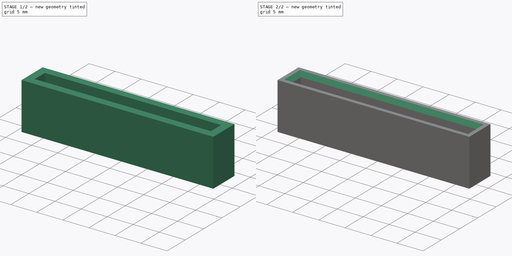
[diagram: build sequence overview — one tinted view per stage of 2, left to right]
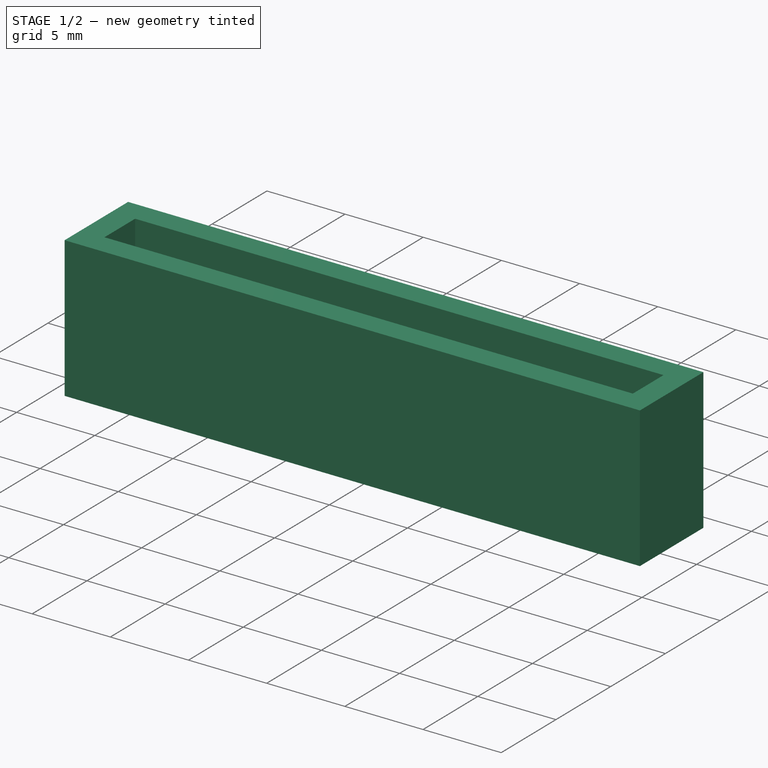
[diagram: stage 1 of 2 — iso view after this stage's code; geometry added in this stage tinted green]
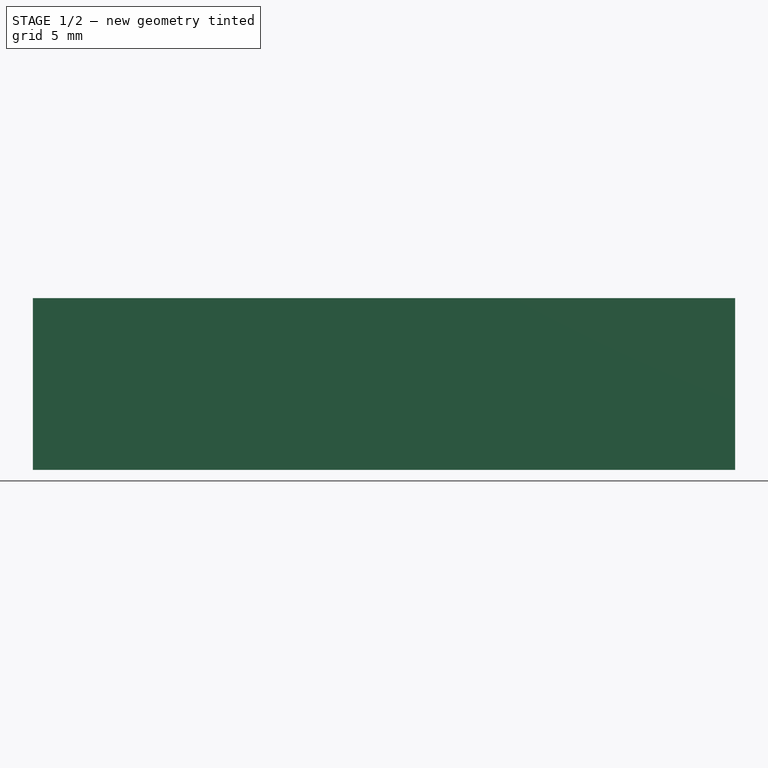
[diagram: stage 1 of 2 — front view after this stage's code; geometry added in this stage tinted green]
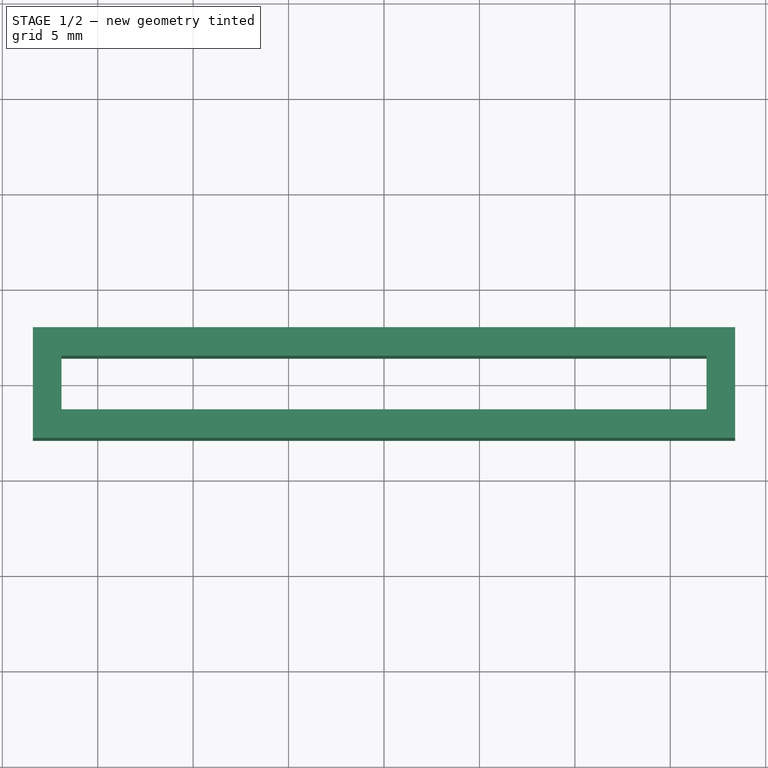
[diagram: stage 1 of 2 — top view after this stage's code; geometry added in this stage tinted green]
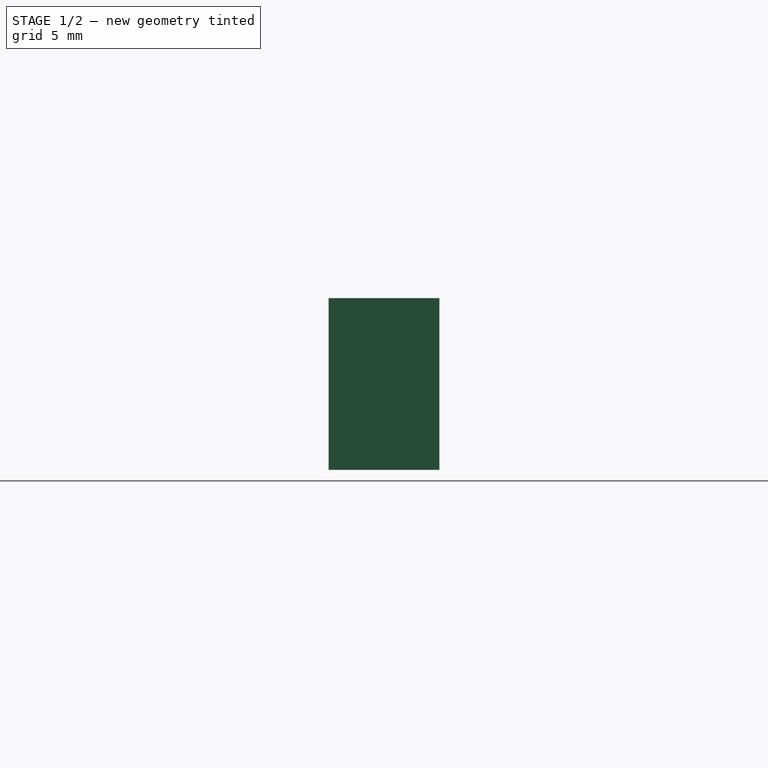
[diagram: stage 1 of 2 — right view after this stage's code; geometry added in this stage tinted green]
FCSTD DOCUMENT  (FreeCAD 0.19R24291 (Git))
Label: 20211204-Jumperkabel Rahmen3
License: All rights reserved
LicenseURL: http://en.wikipedia.org/wiki/All_rights_reserved
objects: Spreadsheet::Sheet×1, Sketcher::SketchObject×1, PartDesign::Pad×1, PartDesign::Chamfer×1, PartDesign::Body×1
note: 6 computed .brp shape members not serialized (recipe doc carries the construction recipe); baked Part::Feature solids carry a one-line shape summary decoded from their .brp

FEATURE [Spreadsheet::Sheet] Spreadsheet  label="Abmessungen"
  cells = A2=Höhe innen; B2(hoch)==2.8mm; A3=Breite innen; B3(breit)==33.8mm; A4=Wandstärke; B4(dick)==1.5mm; A5=Tiefe; B5(tief)==9mm; A7=Anzahl der Pins; B7=Breite innen; C7=Höhe innen; A8=13x1; B8==33.8mm; C8==2.8mm; A9=12x1; B9==30.9mm; C9==2.8mm; A10=6x1; B10==15.4mm; C10==2.8mm; A11=3x2; B11==7.7mm; C11==5.3mm
FEATURE [Sketcher::SketchObject] Sketch
  FullyConstrained = true
  MapMode = 5
  Support = -> [XY_Plane]
  expr: Constraints[21] = Spreadsheet.breit + 2 * Spreadsheet.dick
  expr: Constraints[20] = Spreadsheet.breit
  expr: Constraints[19] = Spreadsheet.hoch + 2 * Spreadsheet.dick
  expr: Constraints[18] = Spreadsheet.hoch
  sketch-geometry (8):
    g0: LineSegment StartX=-16.9 StartY=-1.4 StartZ=0 EndX=16.9 EndY=-1.4 EndZ=0
    g1: LineSegment StartX=16.9 StartY=-1.4 StartZ=0 EndX=16.9 EndY=1.4 EndZ=0
    g2: LineSegment StartX=16.9 StartY=1.4 StartZ=0 EndX=-16.9 EndY=1.4 EndZ=0
    g3: LineSegment StartX=-16.9 StartY=1.4 StartZ=0 EndX=-16.9 EndY=-1.4 EndZ=0
    g4: LineSegment StartX=-18.4 StartY=-2.9 StartZ=0 EndX=18.4 EndY=-2.9 EndZ=0
    g5: LineSegment StartX=18.4 StartY=-2.9 StartZ=0 EndX=18.4 EndY=2.9 EndZ=0
    g6: LineSegment StartX=18.4 StartY=2.9 StartZ=0 EndX=-18.4 EndY=2.9 EndZ=0
    g7: LineSegment StartX=-18.4 StartY=2.9 StartZ=0 EndX=-18.4 EndY=-2.9 EndZ=0
  constraints (22):
    c: Coincident(g0,g1)
    c: Coincident(g1,g2)
    c: Coincident(g2,g3)
    c: Coincident(g3,g0)
    c: Horizontal(g0)
    c: Horizontal(g2)
    c: Vertical(g1)
    c: Vertical(g3)
    c: Coincident(g4,g5)
    c: Coincident(g5,g6)
    c: Coincident(g6,g7)
    c: Coincident(g7,g4)
    c: Horizontal(g4)
    c: Horizontal(g6)
    c: Vertical(g5)
    c: Vertical(g7)
    c: Symmetric(g1,g0,g-1)
    c: Symmetric(g4,g5,g-1)
    c: DistanceY(g1,g1) = 2.8
    c: DistanceY(g5,g5) = 5.8
    c: DistanceX(g2,g2) = 33.8
    c: DistanceX(g6,g6) = 36.8
FEATURE [PartDesign::Pad] Pad
  Direction = (1,1,1)
  Length = 9
  Length2 = 100
  Profile = -> Sketch
  Type = 0
  expr: Length = <<Abmessungen>>.tief
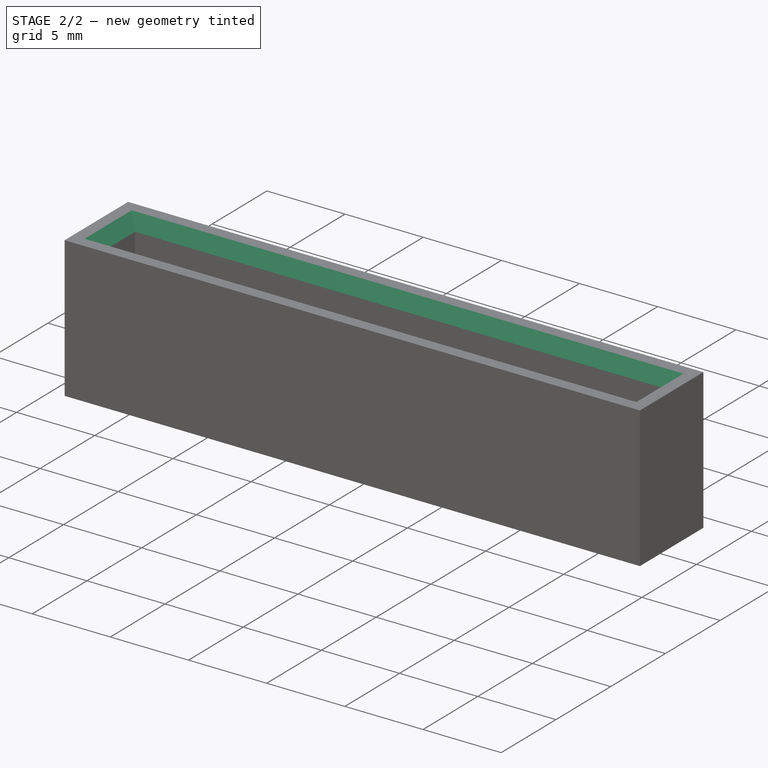
[diagram: stage 2 of 2 — iso view after this stage's code; geometry added in this stage tinted green]
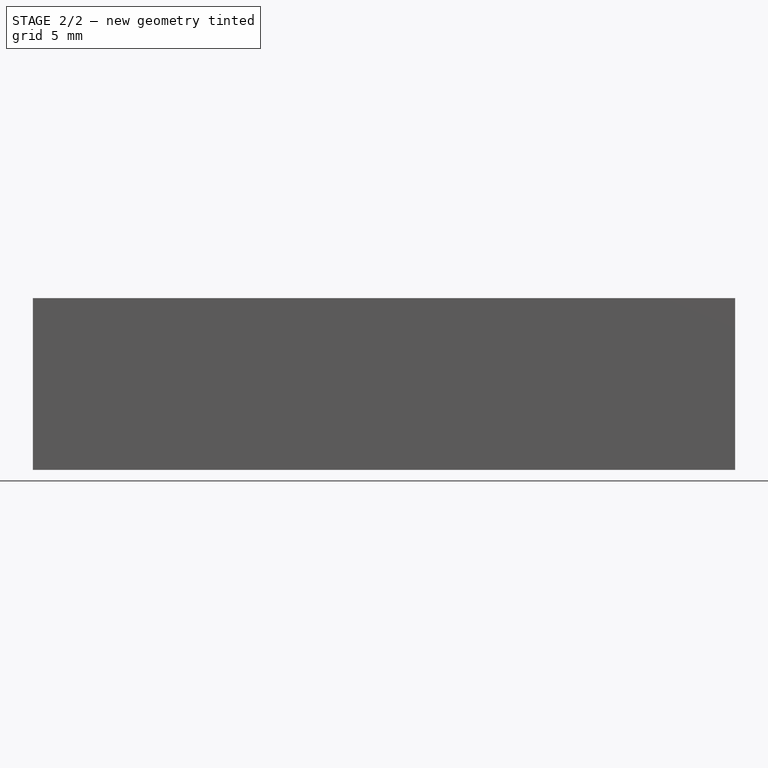
[diagram: stage 2 of 2 — front view after this stage's code; geometry added in this stage tinted green]
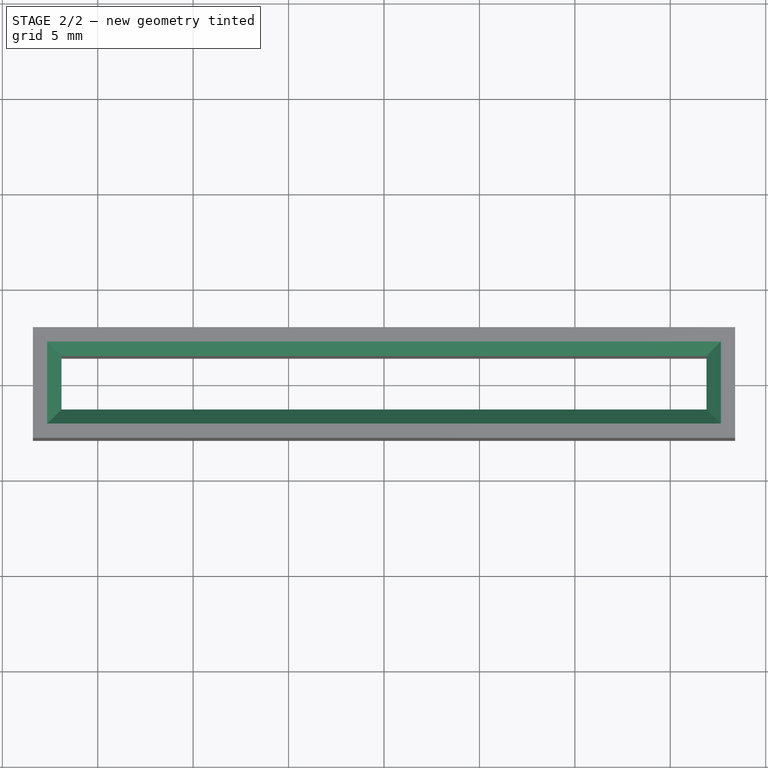
[diagram: stage 2 of 2 — top view after this stage's code; geometry added in this stage tinted green]
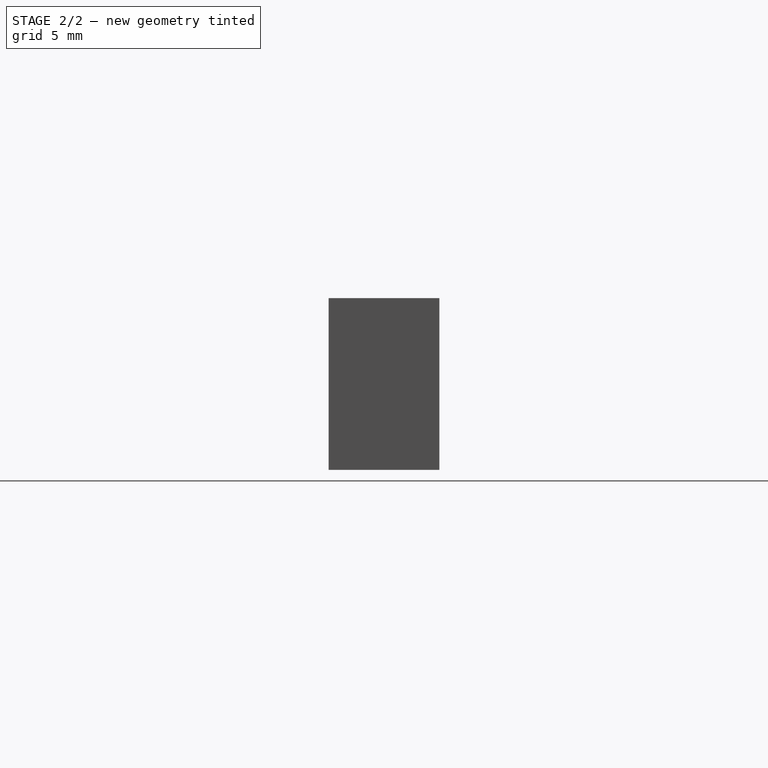
[diagram: stage 2 of 2 — right view after this stage's code; geometry added in this stage tinted green]
FEATURE [PartDesign::Chamfer] Chamfer
  Angle = 45
  Base = -> Pad [Edge19,Edge24,Edge16,Edge22]
  BaseFeature = -> Pad
  ChamferType = 0
  FlipDirection = false
  Size = 0.75
  Size2 = 1
  SupportTransform = false
  expr: Size = <<Abmessungen>>.dick / 2
FEATURE [PartDesign::Body] Body
  Group = -> [Sketch,Pad,Chamfer]
  Origin = -> Origin
  Tip = -> Chamfer
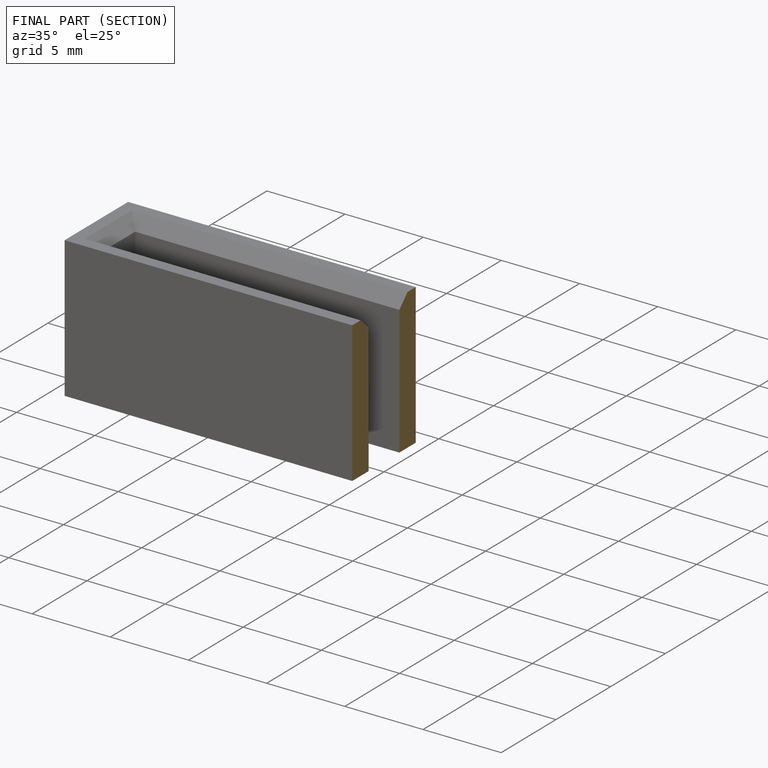
[diagram: finished part — half-section view (interior)]
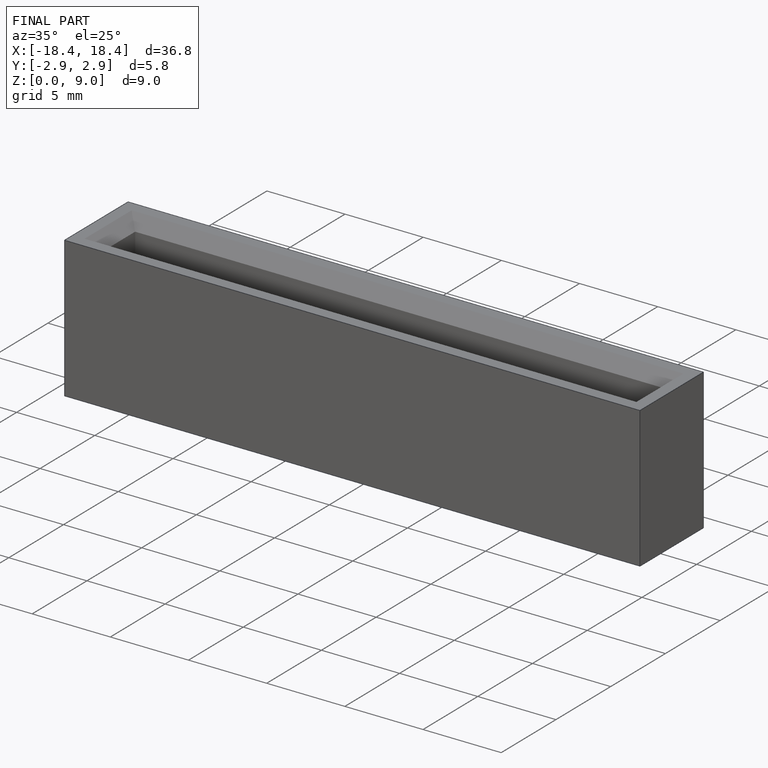
[diagram: finished part — iso view with bounding-box wireframe]
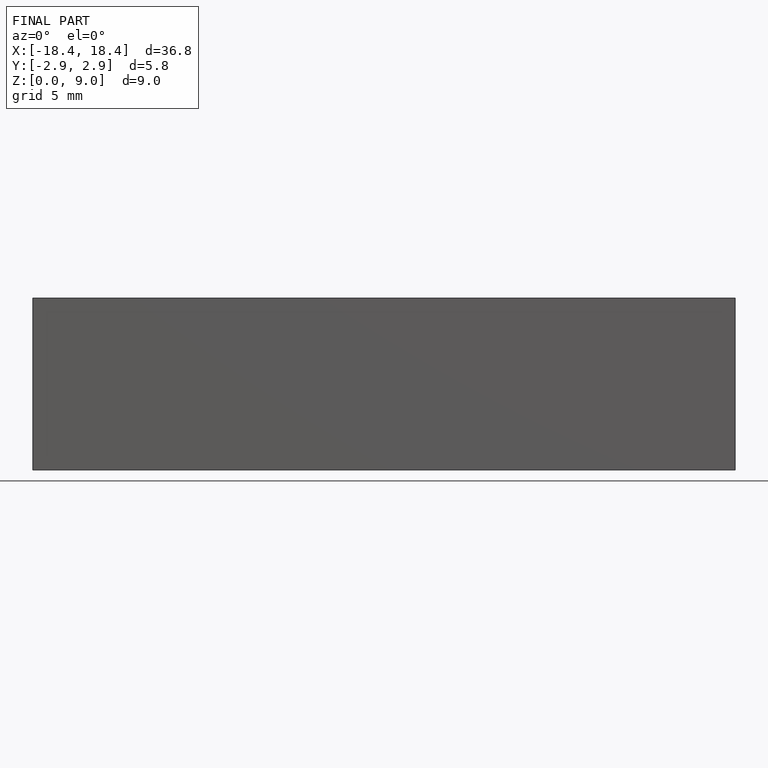
[diagram: finished part — front view with bounding-box wireframe]
